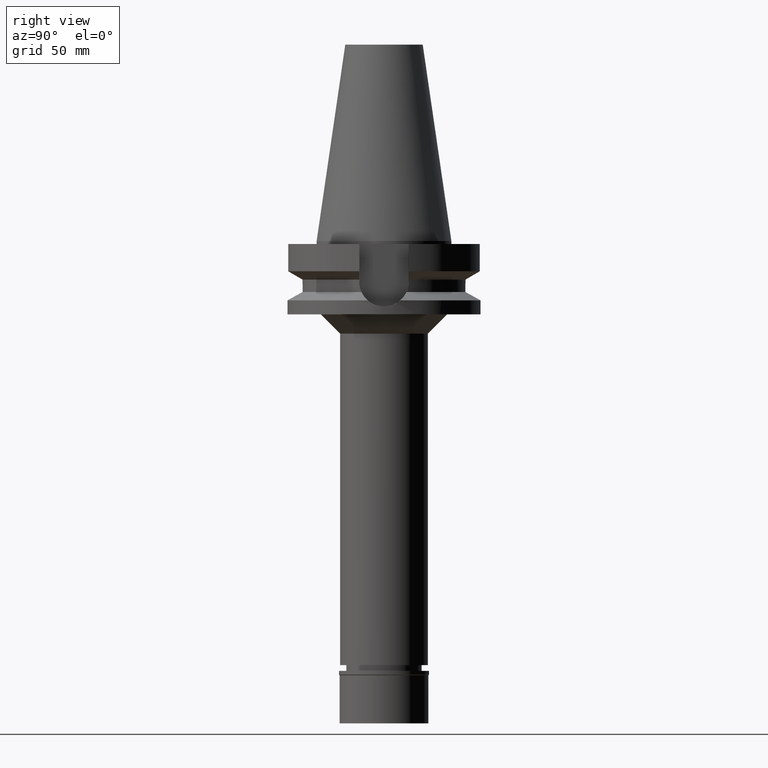
[diagram: clean part render]
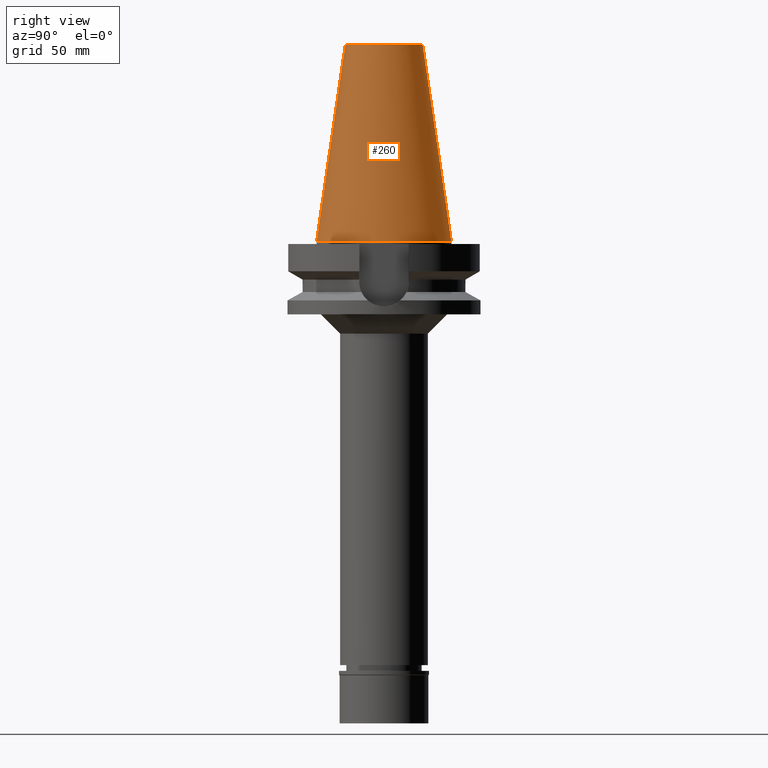
[diagram: same view with one face highlighted and labeled with its STEP entity id]
A machine part, right view. The second image highlights one B-rep face of the part: STEP entity #260.
In plain terms, the highlighted conical surface has half-angle 8.297 deg.
Its self-contained STEP definition (entity closure, byte-faithful):
#36 = VERTEX_POINT ( 'NONE', #1436 ) ;
#65 = DIRECTION ( 'NONE',  ( 0.0000000000000000000, 0.1443043893538948075, -0.9895333461855641000 ) ) ;
#105 = AXIS2_PLACEMENT_3D ( 'NONE', #2315, #2005, #286 ) ;
#211 = VERTEX_POINT ( 'NONE', #1750 ) ;
#241 = EDGE_CURVE ( 'NONE', #2180, #211, #251, .T. ) ;
#251 = CIRCLE ( 'NONE', #545, 20.07942971896000017 ) ;
#258 = CIRCLE ( 'NONE', #660, 34.92499999999999716 ) ;
#260 = ADVANCED_FACE ( 'NONE', ( #2245 ), #1987, .T. ) ;
#286 = DIRECTION ( 'NONE',  ( 0.0000000000000000000, -1.000000000000000000, 0.0000000000000000000 ) ) ;
#337 = DIRECTION ( 'NONE',  ( 0.0000000000000000000, 0.0000000000000000000, -1.000000000000000000 ) ) ;
#348 = ORIENTED_EDGE ( 'NONE', *, *, #2178, .F. ) ;
#429 = DIRECTION ( 'NONE',  ( 0.0000000000000000000, 1.000000000000000000, 0.0000000000000000000 ) ) ;
#545 = AXIS2_PLACEMENT_3D ( 'NONE', #1555, #337, #1074 ) ;
#660 = AXIS2_PLACEMENT_3D ( 'NONE', #1579, #1165, #429 ) ;
#787 = LINE ( 'NONE', #1283, #2146 ) ;
#826 = ORIENTED_EDGE ( 'NONE', *, *, #1523, .T. ) ;
#940 = EDGE_CURVE ( 'NONE', #36, #2662, #258, .T. ) ;
#1074 = DIRECTION ( 'NONE',  ( 0.0000000000000000000, 1.000000000000000000, 0.0000000000000000000 ) ) ;
#1090 = DIRECTION ( 'NONE',  ( 0.0000000000000000000, -0.1443043893538948075, -0.9895333461855641000 ) ) ;
#1165 = DIRECTION ( 'NONE',  ( 0.0000000000000000000, 0.0000000000000000000, -1.000000000000000000 ) ) ;
#1283 = CARTESIAN_POINT ( 'NONE',  ( 0.0000000000000000000, 20.07942971896000017, 101.7999999999999972 ) ) ;
#1305 = ORIENTED_EDGE ( 'NONE', *, *, #940, .F. ) ;
#1345 = CARTESIAN_POINT ( 'NONE',  ( 0.0000000000000000000, -20.07942971896000017, 101.7999999999999972 ) ) ;
#1436 = CARTESIAN_POINT ( 'NONE',  ( 0.0000000000000000000, 34.92499999999999716, 5.755396159657000327E-13 ) ) ;
#1486 = ORIENTED_EDGE ( 'NONE', *, *, #241, .T. ) ;
#1523 = EDGE_CURVE ( 'NONE', #211, #2662, #2069, .T. ) ;
#1555 = CARTESIAN_POINT ( 'NONE',  ( 0.0000000000000000000, 1.847992019912999597E-14, 101.7999999999999972 ) ) ;
#1579 = CARTESIAN_POINT ( 'NONE',  ( 0.0000000000000000000, 1.847992019912999597E-14, 3.979039320256999774E-13 ) ) ;
#1714 = EDGE_LOOP ( 'NONE', ( #1486, #826, #1305, #348 ) ) ;
#1750 = CARTESIAN_POINT ( 'NONE',  ( 0.0000000000000000000, -20.07942971896000017, 101.7999999999999972 ) ) ;
#1975 = CARTESIAN_POINT ( 'NONE',  ( 0.0000000000000000000, 20.07942971896000017, 101.7999999999999972 ) ) ;
#1987 = CONICAL_SURFACE ( 'NONE', #105, 27.50221485948000222, 0.1448099680379422438 ) ;
#2005 = DIRECTION ( 'NONE',  ( 0.0000000000000000000, 0.0000000000000000000, -1.000000000000000000 ) ) ;
#2069 = LINE ( 'NONE', #1345, #3107 ) ;
#2146 = VECTOR ( 'NONE', #65, 1000.000000000000114 ) ;
#2178 = EDGE_CURVE ( 'NONE', #2180, #36, #787, .T. ) ;
#2180 = VERTEX_POINT ( 'NONE', #1975 ) ;
#2245 = FACE_OUTER_BOUND ( 'NONE', #1714, .T. ) ;
#2315 = CARTESIAN_POINT ( 'NONE',  ( 0.0000000000000000000, 1.847992019912999597E-14, 50.89999999999999858 ) ) ;
#2662 = VERTEX_POINT ( 'NONE', #3150 ) ;
#3107 = VECTOR ( 'NONE', #1090, 1000.000000000000114 ) ;
#3150 = CARTESIAN_POINT ( 'NONE',  ( 0.0000000000000000000, -34.92499999999999716, 5.755396159657000327E-13 ) ) ;